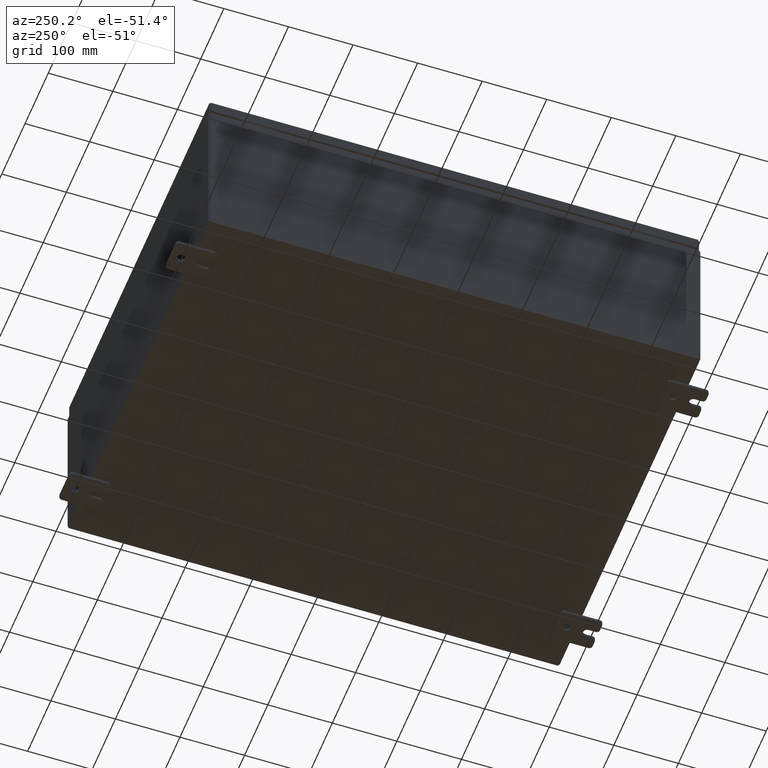
[diagram: clean part render]
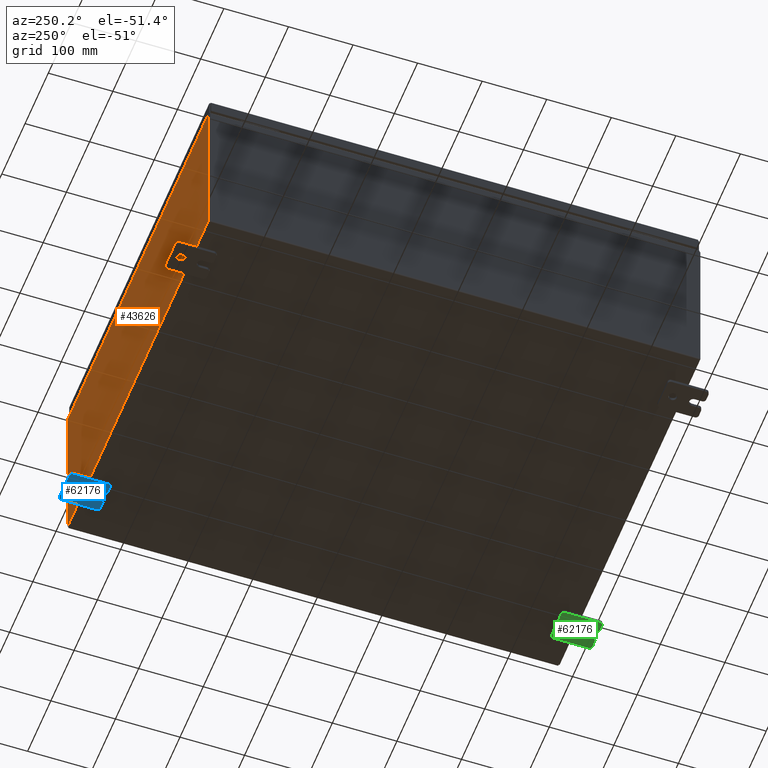
[diagram: same view with three faces highlighted in distinct colors, each labeled with its STEP entity id]
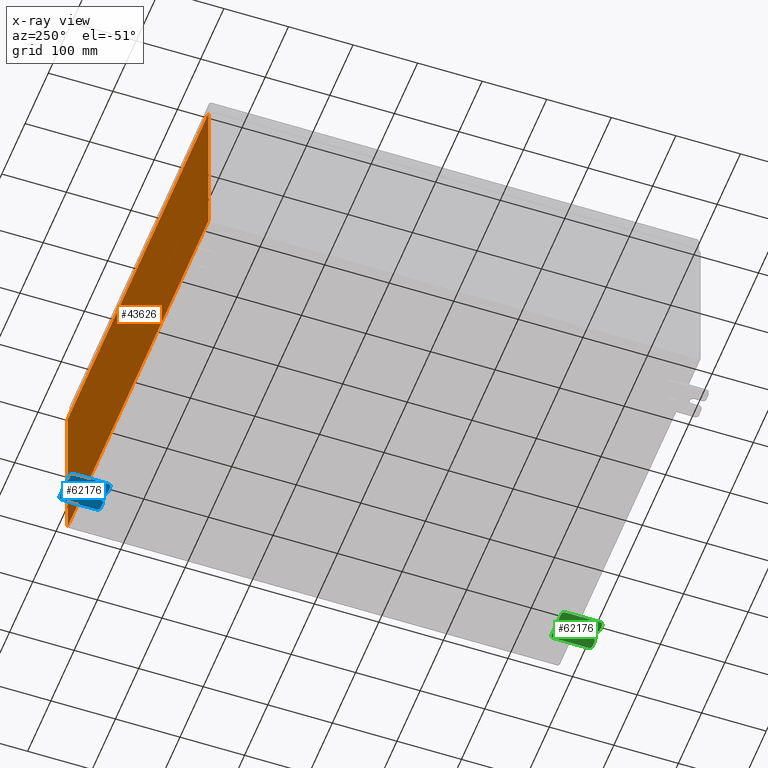
[diagram: x-ray of the same camera — body ghosted, the three highlighted faces saturated]
A machine part, auxiliary view with three faces highlighted in distinct colors.
The next image is the same camera in x-ray (body ghosted, the three faces saturated) — at least one of them is partly hidden behind the body in this view.
Their STEP definitions:

[orange] entity #43626 — the highlighted planar face has unit normal (0, -1, 0).
#475 = VECTOR ( 'NONE', #16385, 39.37007874015748100 ) ;
#1936 = DIRECTION ( 'NONE',  ( -0.0000000000000000000, -0.0000000000000000000, 1.000000000000000000 ) ) ;
#2320 = CARTESIAN_POINT ( 'NONE',  ( 10.92454999999978900, -0.0000000000000000000, -4.741880436811796300E-013 ) ) ;
#2469 = ORIENTED_EDGE ( 'NONE', *, *, #43385, .F. ) ;
#5172 = CARTESIAN_POINT ( 'NONE',  ( -10.88720000000000000, -7.171100983368691200E-016, 4.912300000000000100 ) ) ;
#6236 = CARTESIAN_POINT ( 'NONE',  ( -11.92530000000000000, 0.0000000000000000000, 4.925300000000000000 ) ) ;
#6252 = CIRCLE ( 'NONE', #32690, 0.01867499999999949400 ) ;
#6506 = EDGE_CURVE ( 'NONE', #56201, #15794, #50522, .T. ) ;
#7429 = DIRECTION ( 'NONE',  ( -0.0000000000000000000, 1.000000000000000000, -0.0000000000000000000 ) ) ;
#7491 = EDGE_CURVE ( 'NONE', #17579, #52685, #22674, .T. ) ;
#8458 = DIRECTION ( 'NONE',  ( 0.0000000000000000000, -0.0000000000000000000, -1.000000000000000000 ) ) ;
#9488 = VECTOR ( 'NONE', #29117, 39.37007874015748100 ) ;
#9551 = VECTOR ( 'NONE', #58863, 39.37007874015748100 ) ;
#11231 = DIRECTION ( 'NONE',  ( 1.000000000000000000, 0.0000000000000000000, 0.0000000000000000000 ) ) ;
#11532 = VECTOR ( 'NONE', #39005, 39.37007874015748100 ) ;
#12406 = CARTESIAN_POINT ( 'NONE',  ( -10.90587500000000000, 0.0000000000000000000, 4.874950000000000100 ) ) ;
#12453 = VECTOR ( 'NONE', #1936, 39.37007874015748100 ) ;
#13643 = VERTEX_POINT ( 'NONE', #28390 ) ;
#15794 = VERTEX_POINT ( 'NONE', #20046 ) ;
#16385 = DIRECTION ( 'NONE',  ( 0.0000000000000000000, 0.0000000000000000000, 1.000000000000000000 ) ) ;
#16985 = CARTESIAN_POINT ( 'NONE',  ( -11.92530000000000000, 0.0000000000000000000, 4.925300000000000000 ) ) ;
#17055 = LINE ( 'NONE', #47132, #54873 ) ;
#17066 = ORIENTED_EDGE ( 'NONE', *, *, #23777, .T. ) ;
#17212 = CARTESIAN_POINT ( 'NONE',  ( 10.92455000000000000, 0.0000000000000000000, 4.925300000000000000 ) ) ;
#17410 = DIRECTION ( 'NONE',  ( 0.0000000000000000000, 0.0000000000000000000, -1.000000000000000000 ) ) ;
#17579 = VERTEX_POINT ( 'NONE', #30150 ) ;
#19076 = CIRCLE ( 'NONE', #41275, 0.01867499999999949400 ) ;
#19156 = ORIENTED_EDGE ( 'NONE', *, *, #6506, .T. ) ;
#20046 = CARTESIAN_POINT ( 'NONE',  ( -10.92454999999999800, 0.0000000000000000000, 4.925300000000000000 ) ) ;
#20300 = EDGE_CURVE ( 'NONE', #62571, #32324, #27348, .T. ) ;
#21691 = VECTOR ( 'NONE', #11231, 39.37007874015748100 ) ;
#22494 = EDGE_CURVE ( 'NONE', #23969, #35877, #6252, .T. ) ;
#22511 = VERTEX_POINT ( 'NONE', #17212 ) ;
#22674 = LINE ( 'NONE', #52128, #9488 ) ;
#22838 = CARTESIAN_POINT ( 'NONE',  ( -10.88720000000000000, -0.0000000000000000000, 4.874950000000000100 ) ) ;
#23237 = EDGE_CURVE ( 'NONE', #35035, #56201, #51877, .T. ) ;
#23641 = AXIS2_PLACEMENT_3D ( 'NONE', #32056, #38057, #8458 ) ;
#23777 = EDGE_CURVE ( 'NONE', #22511, #17579, #61151, .T. ) ;
#23969 = VERTEX_POINT ( 'NONE', #51864 ) ;
#24157 = CARTESIAN_POINT ( 'NONE',  ( -11.92530000000000000, 0.0000000000000000000, -4.925300000000000000 ) ) ;
#24701 = LINE ( 'NONE', #58688, #11532 ) ;
#26080 = CARTESIAN_POINT ( 'NONE',  ( 10.88720000000000200, 0.0000000000000000000, 0.0000000000000000000 ) ) ;
#27022 = EDGE_CURVE ( 'NONE', #35877, #53369, #28440, .T. ) ;
#27070 = DIRECTION ( 'NONE',  ( -4.340572780400004900E-014, 0.0000000000000000000, -1.000000000000000000 ) ) ;
#27237 = ORIENTED_EDGE ( 'NONE', *, *, #22494, .F. ) ;
#27348 = LINE ( 'NONE', #46333, #53585 ) ;
#28390 = CARTESIAN_POINT ( 'NONE',  ( -10.92454999999999800, 0.0000000000000000000, 4.874950000000000100 ) ) ;
#28440 = LINE ( 'NONE', #26080, #475 ) ;
#28891 = CARTESIAN_POINT ( 'NONE',  ( -11.92530000000000000, 0.0000000000000000000, 4.925300000000000000 ) ) ;
#29117 = DIRECTION ( 'NONE',  ( 0.0000000000000000000, 0.0000000000000000000, -1.000000000000000000 ) ) ;
#30150 = CARTESIAN_POINT ( 'NONE',  ( 11.92530000000000000, 0.0000000000000000000, 4.925300000000000000 ) ) ;
#31290 = CARTESIAN_POINT ( 'NONE',  ( 11.92530000000000000, 0.0000000000000000000, -4.925300000000000000 ) ) ;
#32056 = CARTESIAN_POINT ( 'NONE',  ( 0.0000000000000000000, 0.0000000000000000000, 0.0000000000000000000 ) ) ;
#32324 = VERTEX_POINT ( 'NONE', #22838 ) ;
#32690 = AXIS2_PLACEMENT_3D ( 'NONE', #37051, #7429, #42010 ) ;
#35035 = VERTEX_POINT ( 'NONE', #24157 ) ;
#35877 = VERTEX_POINT ( 'NONE', #64237 ) ;
#36603 = ORIENTED_EDGE ( 'NONE', *, *, #23237, .T. ) ;
#36949 = EDGE_CURVE ( 'NONE', #22511, #23969, #46406, .T. ) ;
#37051 = CARTESIAN_POINT ( 'NONE',  ( 10.90587500000000200, 0.0000000000000000000, 4.874950000000000100 ) ) ;
#37069 = EDGE_CURVE ( 'NONE', #62571, #53369, #17055, .T. ) ;
#37178 = EDGE_LOOP ( 'NONE', ( #2469, #50299, #45892, #47864, #47634, #27237, #60341, #17066, #57607, #57658, #36603, #19156 ) ) ;
#37702 = EDGE_CURVE ( 'NONE', #52685, #35035, #24701, .T. ) ;
#38057 = DIRECTION ( 'NONE',  ( 0.0000000000000000000, -1.000000000000000000, 0.0000000000000000000 ) ) ;
#39005 = DIRECTION ( 'NONE',  ( -1.000000000000000000, -0.0000000000000000000, -0.0000000000000000000 ) ) ;
#41275 = AXIS2_PLACEMENT_3D ( 'NONE', #12406, #46980, #17410 ) ;
#41371 = EDGE_CURVE ( 'NONE', #32324, #13643, #19076, .T. ) ;
#42010 = DIRECTION ( 'NONE',  ( 0.0000000000000000000, 0.0000000000000000000, -1.000000000000000000 ) ) ;
#43385 = EDGE_CURVE ( 'NONE', #13643, #15794, #53046, .T. ) ;
#43626 = ADVANCED_FACE ( 'NONE', ( #58469 ), #57758, .F. ) ;
#45178 = CARTESIAN_POINT ( 'NONE',  ( 10.88720000000000200, 0.0000000000000000000, 4.912300000000000100 ) ) ;
#45892 = ORIENTED_EDGE ( 'NONE', *, *, #20300, .F. ) ;
#46333 = CARTESIAN_POINT ( 'NONE',  ( -10.88720000000000000, -0.0000000000000000000, 0.0000000000000000000 ) ) ;
#46406 = LINE ( 'NONE', #2320, #59571 ) ;
#46977 = CARTESIAN_POINT ( 'NONE',  ( -11.92530000000000000, 0.0000000000000000000, 4.925300000000000000 ) ) ;
#46980 = DIRECTION ( 'NONE',  ( -0.0000000000000000000, 1.000000000000000000, -0.0000000000000000000 ) ) ;
#47132 = CARTESIAN_POINT ( 'NONE',  ( -10.88720000000000200, -7.171100983368691200E-016, 4.912300000000000100 ) ) ;
#47634 = ORIENTED_EDGE ( 'NONE', *, *, #27022, .F. ) ;
#47864 = ORIENTED_EDGE ( 'NONE', *, *, #37069, .T. ) ;
#50299 = ORIENTED_EDGE ( 'NONE', *, *, #41371, .F. ) ;
#50522 = LINE ( 'NONE', #28891, #9551 ) ;
#51493 = VECTOR ( 'NONE', #55245, 39.37007874015748100 ) ;
#51503 = DIRECTION ( 'NONE',  ( 0.0000000000000000000, 0.0000000000000000000, -1.000000000000000000 ) ) ;
#51864 = CARTESIAN_POINT ( 'NONE',  ( 10.92455000000000000, 0.0000000000000000000, 4.874950000000000100 ) ) ;
#51877 = LINE ( 'NONE', #16985, #12453 ) ;
#52128 = CARTESIAN_POINT ( 'NONE',  ( 11.92530000000000000, 0.0000000000000000000, 4.925300000000000000 ) ) ;
#52685 = VERTEX_POINT ( 'NONE', #31290 ) ;
#53046 = LINE ( 'NONE', #60236, #51493 ) ;
#53369 = VERTEX_POINT ( 'NONE', #45178 ) ;
#53585 = VECTOR ( 'NONE', #51503, 39.37007874015748100 ) ;
#54873 = VECTOR ( 'NONE', #62298, 39.37007874015748100 ) ;
#55245 = DIRECTION ( 'NONE',  ( 0.0000000000000000000, 0.0000000000000000000, 1.000000000000000000 ) ) ;
#56201 = VERTEX_POINT ( 'NONE', #46977 ) ;
#57607 = ORIENTED_EDGE ( 'NONE', *, *, #7491, .T. ) ;
#57658 = ORIENTED_EDGE ( 'NONE', *, *, #37702, .T. ) ;
#57758 = PLANE ( 'NONE',  #23641 ) ;
#58469 = FACE_OUTER_BOUND ( 'NONE', #37178, .T. ) ;
#58688 = CARTESIAN_POINT ( 'NONE',  ( -11.92530000000000000, 0.0000000000000000000, -4.925300000000000000 ) ) ;
#58863 = DIRECTION ( 'NONE',  ( 1.000000000000000000, 0.0000000000000000000, 0.0000000000000000000 ) ) ;
#59571 = VECTOR ( 'NONE', #27070, 39.37007874015748100 ) ;
#60236 = CARTESIAN_POINT ( 'NONE',  ( -10.92454999999999800, -0.0000000000000000000, 0.0000000000000000000 ) ) ;
#60341 = ORIENTED_EDGE ( 'NONE', *, *, #36949, .F. ) ;
#61151 = LINE ( 'NONE', #6236, #21691 ) ;
#62298 = DIRECTION ( 'NONE',  ( 1.000000000000000000, 0.0000000000000000000, 0.0000000000000000000 ) ) ;
#62571 = VERTEX_POINT ( 'NONE', #5172 ) ;
#64237 = CARTESIAN_POINT ( 'NONE',  ( 10.88720000000000200, 0.0000000000000000000, 4.874950000000000100 ) ) ;

[blue] entity #62176 — the highlighted planar face has unit normal (0, 0, 1).
#374 = ORIENTED_EDGE ( 'NONE', *, *, #29772, .T. ) ;
#427 = CIRCLE ( 'NONE', #10709, 0.2499999999999999200 ) ;
#1427 = AXIS2_PLACEMENT_3D ( 'NONE', #54958, #4538, #31204 ) ;
#1960 = CIRCLE ( 'NONE', #24511, 0.1900000000000011100 ) ;
#2434 = ORIENTED_EDGE ( 'NONE', *, *, #48936, .F. ) ;
#2620 = ORIENTED_EDGE ( 'NONE', *, *, #35389, .F. ) ;
#2788 = EDGE_CURVE ( 'NONE', #44890, #25598, #42414, .T. ) ;
#3155 = CARTESIAN_POINT ( 'NONE',  ( -0.1879999999999997800, -1.250000000000005600, -1.000000000000006200 ) ) ;
#4411 = EDGE_CURVE ( 'NONE', #62870, #14577, #35068, .T. ) ;
#4538 = DIRECTION ( 'NONE',  ( -1.000000000000000000, -0.0000000000000000000, 0.0000000000000000000 ) ) ;
#4834 = ORIENTED_EDGE ( 'NONE', *, *, #2788, .F. ) ;
#5168 = CARTESIAN_POINT ( 'NONE',  ( -0.1880000000000004700, -1.060000000000003400, -0.2499999999999994400 ) ) ;
#5798 = EDGE_CURVE ( 'NONE', #22748, #57081, #26620, .T. ) ;
#5935 = VECTOR ( 'NONE', #52695, 39.37007874015748100 ) ;
#6024 = DIRECTION ( 'NONE',  ( -1.000000000000000000, -0.0000000000000000000, 0.0000000000000000000 ) ) ;
#6175 = ORIENTED_EDGE ( 'NONE', *, *, #26334, .T. ) ;
#6201 = CARTESIAN_POINT ( 'NONE',  ( -0.1880000000000010000, 0.6249999999999992200, -7.703811342100550500E-020 ) ) ;
#6605 = LINE ( 'NONE', #45254, #19814 ) ;
#7321 = AXIS2_PLACEMENT_3D ( 'NONE', #26987, #21803, #36910 ) ;
#7538 = LINE ( 'NONE', #47717, #5935 ) ;
#8000 = CARTESIAN_POINT ( 'NONE',  ( -0.1879999999999997800, -1.250000000000004700, -0.4400000000000002200 ) ) ;
#9768 = DIRECTION ( 'NONE',  ( -1.000000000000000000, 6.523827964459549700E-016, 5.163192708025532000E-017 ) ) ;
#10706 = LINE ( 'NONE', #52826, #63356 ) ;
#10709 = AXIS2_PLACEMENT_3D ( 'NONE', #6201, #40810, #11202 ) ;
#10807 = CARTESIAN_POINT ( 'NONE',  ( -0.1880000000000001900, -0.6249999999999992200, 0.2500000000000005000 ) ) ;
#10841 = DIRECTION ( 'NONE',  ( 0.0000000000000000000, -1.639108796198553600E-015, -1.000000000000000000 ) ) ;
#11202 = DIRECTION ( 'NONE',  ( 0.0000000000000000000, 0.0000000000000000000, -1.000000000000000000 ) ) ;
#11275 = CARTESIAN_POINT ( 'NONE',  ( -0.1879999999999997800, 1.249999999999997600, 0.9999999999999951200 ) ) ;
#11513 = CARTESIAN_POINT ( 'NONE',  ( -0.1879999999999997800, -1.060000000000002100, 0.4400000000000016700 ) ) ;
#12080 = EDGE_CURVE ( 'NONE', #57412, #23712, #10706, .T. ) ;
#12317 = DIRECTION ( 'NONE',  ( 1.000000000000000000, -0.0000000000000000000, -5.163192708025532000E-017 ) ) ;
#12320 = CARTESIAN_POINT ( 'NONE',  ( -0.1879999999999997800, -1.060000000000001600, 0.8099999999999978300 ) ) ;
#12898 = ORIENTED_EDGE ( 'NONE', *, *, #57688, .F. ) ;
#12905 = CARTESIAN_POINT ( 'NONE',  ( -0.1879999999999997800, 1.059999999999993400, -1.000000000000010000 ) ) ;
#13832 = VECTOR ( 'NONE', #37798, 39.37007874015748100 ) ;
#14577 = VERTEX_POINT ( 'NONE', #5168 ) ;
#14708 = EDGE_CURVE ( 'NONE', #61397, #14577, #1960, .T. ) ;
#15571 = EDGE_CURVE ( 'NONE', #24017, #21118, #6605, .T. ) ;
#15707 = CARTESIAN_POINT ( 'NONE',  ( -0.1880000000000001900, -0.6249999999999992200, -0.2499999999999993900 ) ) ;
#16071 = ORIENTED_EDGE ( 'NONE', *, *, #14708, .T. ) ;
#16433 = ORIENTED_EDGE ( 'NONE', *, *, #15571, .F. ) ;
#16549 = DIRECTION ( 'NONE',  ( 0.0000000000000000000, 0.0000000000000000000, -1.000000000000000000 ) ) ;
#16580 = CARTESIAN_POINT ( 'NONE',  ( -0.1879999999999997800, 1.059999999999996500, 0.9999999999999953400 ) ) ;
#17131 = CARTESIAN_POINT ( 'NONE',  ( -0.1880000000000001900, -0.6249999999999992200, -0.2499999999999998600 ) ) ;
#17330 = DIRECTION ( 'NONE',  ( 0.0000000000000000000, 7.189073667537492800E-016, -1.000000000000000000 ) ) ;
#17558 = CARTESIAN_POINT ( 'NONE',  ( -0.1879999999999997800, 1.249999999999994700, -0.8100000000000092700 ) ) ;
#17788 = AXIS2_PLACEMENT_3D ( 'NONE', #22072, #56621, #27035 ) ;
#19814 = VECTOR ( 'NONE', #30780, 39.37007874015748100 ) ;
#20157 = ORIENTED_EDGE ( 'NONE', *, *, #12080, .F. ) ;
#21118 = VERTEX_POINT ( 'NONE', #36392 ) ;
#21306 = ORIENTED_EDGE ( 'NONE', *, *, #56827, .T. ) ;
#21803 = DIRECTION ( 'NONE',  ( 1.000000000000000000, 0.0000000000000000000, -0.0000000000000000000 ) ) ;
#21969 = VECTOR ( 'NONE', #35895, 39.37007874015748100 ) ;
#22072 = CARTESIAN_POINT ( 'NONE',  ( -0.1879999999999997800, 1.059999999999996300, 0.8099999999999938400 ) ) ;
#22155 = CARTESIAN_POINT ( 'NONE',  ( -0.1880000000000010000, 0.6249999999999992200, 0.2499999999999999200 ) ) ;
#22276 = CARTESIAN_POINT ( 'NONE',  ( -0.1879999999999997800, -1.060000000000004500, -1.000000000000006400 ) ) ;
#22748 = VERTEX_POINT ( 'NONE', #22276 ) ;
#22977 = ORIENTED_EDGE ( 'NONE', *, *, #4411, .F. ) ;
#23252 = DIRECTION ( 'NONE',  ( 6.556435184794182400E-016, 1.000000000000000000, 0.0000000000000000000 ) ) ;
#23312 = VERTEX_POINT ( 'NONE', #22155 ) ;
#23712 = VERTEX_POINT ( 'NONE', #10807 ) ;
#24017 = VERTEX_POINT ( 'NONE', #17558 ) ;
#24511 = AXIS2_PLACEMENT_3D ( 'NONE', #35673, #6024, #40655 ) ;
#25598 = VERTEX_POINT ( 'NONE', #32067 ) ;
#26334 = EDGE_CURVE ( 'NONE', #31571, #23312, #45483, .T. ) ;
#26620 = CIRCLE ( 'NONE', #1427, 0.1900000000000011100 ) ;
#26987 = CARTESIAN_POINT ( 'NONE',  ( -0.1879999999999997800, 0.0000000000000000000, 0.0000000000000000000 ) ) ;
#27035 = DIRECTION ( 'NONE',  ( 0.0000000000000000000, 0.0000000000000000000, -1.000000000000000000 ) ) ;
#27170 = CIRCLE ( 'NONE', #57730, 0.1900000000000011100 ) ;
#28506 = EDGE_CURVE ( 'NONE', #59071, #21118, #50758, .T. ) ;
#28833 = ORIENTED_EDGE ( 'NONE', *, *, #60505, .T. ) ;
#29605 = DIRECTION ( 'NONE',  ( -1.000000000000000000, -0.0000000000000000000, 0.0000000000000000000 ) ) ;
#29772 = EDGE_CURVE ( 'NONE', #23312, #31571, #427, .T. ) ;
#30780 = DIRECTION ( 'NONE',  ( 0.0000000000000000000, 1.639108796198553600E-015, 1.000000000000000000 ) ) ;
#30963 = FACE_OUTER_BOUND ( 'NONE', #46139, .T. ) ;
#31204 = DIRECTION ( 'NONE',  ( 0.0000000000000000000, 0.0000000000000000000, -1.000000000000000000 ) ) ;
#31571 = VERTEX_POINT ( 'NONE', #52903 ) ;
#31961 = PLANE ( 'NONE',  #7321 ) ;
#32067 = CARTESIAN_POINT ( 'NONE',  ( -0.1879999999999997800, -1.250000000000003100, 0.4400000000000020000 ) ) ;
#35068 = LINE ( 'NONE', #15707, #21969 ) ;
#35389 = EDGE_CURVE ( 'NONE', #59071, #60490, #61993, .T. ) ;
#35578 = CIRCLE ( 'NONE', #63222, 0.1900000000000011400 ) ;
#35673 = CARTESIAN_POINT ( 'NONE',  ( -0.1879999999999997800, -1.060000000000003400, -0.4400000000000005000 ) ) ;
#35895 = DIRECTION ( 'NONE',  ( -6.556435184794182400E-016, -1.000000000000000000, -1.639108796198545600E-016 ) ) ;
#36392 = CARTESIAN_POINT ( 'NONE',  ( -0.1879999999999997800, 1.249999999999997300, 0.8099999999999935000 ) ) ;
#36910 = DIRECTION ( 'NONE',  ( -0.0000000000000000000, 0.0000000000000000000, -1.000000000000000000 ) ) ;
#37226 = VECTOR ( 'NONE', #40890, 39.37007874015748100 ) ;
#37798 = DIRECTION ( 'NONE',  ( 0.0000000000000000000, 1.000000000000000000, -1.639108796198558100E-015 ) ) ;
#38968 = AXIS2_PLACEMENT_3D ( 'NONE', #12320, #46894, #17330 ) ;
#39394 = CARTESIAN_POINT ( 'NONE',  ( -0.1880000000000001900, -0.6249999999999992200, 6.829619984160658000E-017 ) ) ;
#40655 = DIRECTION ( 'NONE',  ( 0.0000000000000000000, 0.0000000000000000000, -1.000000000000000000 ) ) ;
#40810 = DIRECTION ( 'NONE',  ( 1.000000000000000000, -0.0000000000000000000, -5.163192708025532000E-017 ) ) ;
#40890 = DIRECTION ( 'NONE',  ( 0.0000000000000000000, -1.000000000000000000, 1.639108796198558100E-015 ) ) ;
#41669 = ORIENTED_EDGE ( 'NONE', *, *, #47628, .F. ) ;
#41905 = CARTESIAN_POINT ( 'NONE',  ( -0.1880000000000010000, 0.6249999999999992200, -7.703811342100550500E-020 ) ) ;
#42414 = LINE ( 'NONE', #45426, #53988 ) ;
#42560 = FACE_BOUND ( 'NONE', #53303, .T. ) ;
#44345 = DIRECTION ( 'NONE',  ( -6.829619984160660000E-016, -1.000000000000000000, 0.0000000000000000000 ) ) ;
#44890 = VERTEX_POINT ( 'NONE', #62106 ) ;
#45254 = CARTESIAN_POINT ( 'NONE',  ( -0.1879999999999997800, 1.249999999999994200, -1.000000000000010400 ) ) ;
#45426 = CARTESIAN_POINT ( 'NONE',  ( -0.1879999999999997800, -1.250000000000002200, 0.9999999999999992200 ) ) ;
#45483 = CIRCLE ( 'NONE', #56178, 0.2499999999999999200 ) ;
#45685 = CARTESIAN_POINT ( 'NONE',  ( -0.1879999999999997800, -1.060000000000001200, 0.9999999999999988900 ) ) ;
#45724 = ORIENTED_EDGE ( 'NONE', *, *, #28506, .T. ) ;
#46114 = DIRECTION ( 'NONE',  ( -1.000000000000000000, -0.0000000000000000000, 0.0000000000000000000 ) ) ;
#46139 = EDGE_LOOP ( 'NONE', ( #4834, #50636, #2620, #45724, #16433, #21306, #41669, #58567, #2434, #16071, #22977, #12898, #20157, #28833 ) ) ;
#46890 = DIRECTION ( 'NONE',  ( 0.0000000000000000000, 0.0000000000000000000, -1.000000000000000000 ) ) ;
#46894 = DIRECTION ( 'NONE',  ( -1.000000000000000000, -0.0000000000000000000, 0.0000000000000000000 ) ) ;
#47628 = EDGE_CURVE ( 'NONE', #22748, #54864, #51685, .T. ) ;
#47717 = CARTESIAN_POINT ( 'NONE',  ( -0.1879999999999997800, -1.250000000000002200, 0.9999999999999992200 ) ) ;
#48911 = CIRCLE ( 'NONE', #61892, 0.2499999999999999200 ) ;
#48936 = EDGE_CURVE ( 'NONE', #61397, #57081, #7538, .T. ) ;
#50636 = ORIENTED_EDGE ( 'NONE', *, *, #53600, .T. ) ;
#50668 = CARTESIAN_POINT ( 'NONE',  ( -0.1879999999999997800, -1.250000000000005300, -0.8100000000000047200 ) ) ;
#50758 = CIRCLE ( 'NONE', #17788, 0.1900000000000011100 ) ;
#51685 = LINE ( 'NONE', #3155, #13832 ) ;
#52607 = CARTESIAN_POINT ( 'NONE',  ( -0.1880000000000004700, -1.060000000000002100, 0.2500000000000005000 ) ) ;
#52695 = DIRECTION ( 'NONE',  ( 0.0000000000000000000, -1.639108796198553600E-015, -1.000000000000000000 ) ) ;
#52826 = CARTESIAN_POINT ( 'NONE',  ( -0.1880000000000005800, -1.250000000000003800, 0.2500000000000005000 ) ) ;
#52903 = CARTESIAN_POINT ( 'NONE',  ( -0.1880000000000010000, 0.6249999999999992200, -0.2499999999999999200 ) ) ;
#53303 = EDGE_LOOP ( 'NONE', ( #6175, #374 ) ) ;
#53600 = EDGE_CURVE ( 'NONE', #44890, #60490, #61417, .T. ) ;
#53988 = VECTOR ( 'NONE', #10841, 39.37007874015748100 ) ;
#54864 = VERTEX_POINT ( 'NONE', #12905 ) ;
#54958 = CARTESIAN_POINT ( 'NONE',  ( -0.1879999999999997800, -1.060000000000004100, -0.8100000000000050500 ) ) ;
#56178 = AXIS2_PLACEMENT_3D ( 'NONE', #41905, #12317, #46890 ) ;
#56621 = DIRECTION ( 'NONE',  ( -1.000000000000000000, -0.0000000000000000000, 0.0000000000000000000 ) ) ;
#56827 = EDGE_CURVE ( 'NONE', #24017, #54864, #27170, .T. ) ;
#57081 = VERTEX_POINT ( 'NONE', #50668 ) ;
#57412 = VERTEX_POINT ( 'NONE', #52607 ) ;
#57688 = EDGE_CURVE ( 'NONE', #23712, #62870, #48911, .T. ) ;
#57730 = AXIS2_PLACEMENT_3D ( 'NONE', #59243, #29605, #64222 ) ;
#58567 = ORIENTED_EDGE ( 'NONE', *, *, #5798, .T. ) ;
#59071 = VERTEX_POINT ( 'NONE', #16580 ) ;
#59243 = CARTESIAN_POINT ( 'NONE',  ( -0.1879999999999997800, 1.059999999999993600, -0.8100000000000089400 ) ) ;
#60490 = VERTEX_POINT ( 'NONE', #45685 ) ;
#60505 = EDGE_CURVE ( 'NONE', #57412, #25598, #35578, .T. ) ;
#61397 = VERTEX_POINT ( 'NONE', #8000 ) ;
#61417 = CIRCLE ( 'NONE', #38968, 0.1900000000000011100 ) ;
#61892 = AXIS2_PLACEMENT_3D ( 'NONE', #39394, #9768, #44345 ) ;
#61993 = LINE ( 'NONE', #11275, #37226 ) ;
#62106 = CARTESIAN_POINT ( 'NONE',  ( -0.1879999999999997800, -1.250000000000002400, 0.8099999999999980500 ) ) ;
#62176 = ADVANCED_FACE ( 'NONE', ( #42560, #30963 ), #31961, .F. ) ;
#62870 = VERTEX_POINT ( 'NONE', #17131 ) ;
#63222 = AXIS2_PLACEMENT_3D ( 'NONE', #11513, #46114, #16549 ) ;
#63356 = VECTOR ( 'NONE', #23252, 39.37007874015748100 ) ;
#64222 = DIRECTION ( 'NONE',  ( 0.0000000000000000000, 0.0000000000000000000, -1.000000000000000000 ) ) ;

[green] entity #62176 — the highlighted planar face has unit normal (0, 0, 1).
#374 = ORIENTED_EDGE ( 'NONE', *, *, #29772, .T. ) ;
#427 = CIRCLE ( 'NONE', #10709, 0.2499999999999999200 ) ;
#1427 = AXIS2_PLACEMENT_3D ( 'NONE', #54958, #4538, #31204 ) ;
#1960 = CIRCLE ( 'NONE', #24511, 0.1900000000000011100 ) ;
#2434 = ORIENTED_EDGE ( 'NONE', *, *, #48936, .F. ) ;
#2620 = ORIENTED_EDGE ( 'NONE', *, *, #35389, .F. ) ;
#2788 = EDGE_CURVE ( 'NONE', #44890, #25598, #42414, .T. ) ;
#3155 = CARTESIAN_POINT ( 'NONE',  ( -0.1879999999999997800, -1.250000000000005600, -1.000000000000006200 ) ) ;
#4411 = EDGE_CURVE ( 'NONE', #62870, #14577, #35068, .T. ) ;
#4538 = DIRECTION ( 'NONE',  ( -1.000000000000000000, -0.0000000000000000000, 0.0000000000000000000 ) ) ;
#4834 = ORIENTED_EDGE ( 'NONE', *, *, #2788, .F. ) ;
#5168 = CARTESIAN_POINT ( 'NONE',  ( -0.1880000000000004700, -1.060000000000003400, -0.2499999999999994400 ) ) ;
#5798 = EDGE_CURVE ( 'NONE', #22748, #57081, #26620, .T. ) ;
#5935 = VECTOR ( 'NONE', #52695, 39.37007874015748100 ) ;
#6024 = DIRECTION ( 'NONE',  ( -1.000000000000000000, -0.0000000000000000000, 0.0000000000000000000 ) ) ;
#6175 = ORIENTED_EDGE ( 'NONE', *, *, #26334, .T. ) ;
#6201 = CARTESIAN_POINT ( 'NONE',  ( -0.1880000000000010000, 0.6249999999999992200, -7.703811342100550500E-020 ) ) ;
#6605 = LINE ( 'NONE', #45254, #19814 ) ;
#7321 = AXIS2_PLACEMENT_3D ( 'NONE', #26987, #21803, #36910 ) ;
#7538 = LINE ( 'NONE', #47717, #5935 ) ;
#8000 = CARTESIAN_POINT ( 'NONE',  ( -0.1879999999999997800, -1.250000000000004700, -0.4400000000000002200 ) ) ;
#9768 = DIRECTION ( 'NONE',  ( -1.000000000000000000, 6.523827964459549700E-016, 5.163192708025532000E-017 ) ) ;
#10706 = LINE ( 'NONE', #52826, #63356 ) ;
#10709 = AXIS2_PLACEMENT_3D ( 'NONE', #6201, #40810, #11202 ) ;
#10807 = CARTESIAN_POINT ( 'NONE',  ( -0.1880000000000001900, -0.6249999999999992200, 0.2500000000000005000 ) ) ;
#10841 = DIRECTION ( 'NONE',  ( 0.0000000000000000000, -1.639108796198553600E-015, -1.000000000000000000 ) ) ;
#11202 = DIRECTION ( 'NONE',  ( 0.0000000000000000000, 0.0000000000000000000, -1.000000000000000000 ) ) ;
#11275 = CARTESIAN_POINT ( 'NONE',  ( -0.1879999999999997800, 1.249999999999997600, 0.9999999999999951200 ) ) ;
#11513 = CARTESIAN_POINT ( 'NONE',  ( -0.1879999999999997800, -1.060000000000002100, 0.4400000000000016700 ) ) ;
#12080 = EDGE_CURVE ( 'NONE', #57412, #23712, #10706, .T. ) ;
#12317 = DIRECTION ( 'NONE',  ( 1.000000000000000000, -0.0000000000000000000, -5.163192708025532000E-017 ) ) ;
#12320 = CARTESIAN_POINT ( 'NONE',  ( -0.1879999999999997800, -1.060000000000001600, 0.8099999999999978300 ) ) ;
#12898 = ORIENTED_EDGE ( 'NONE', *, *, #57688, .F. ) ;
#12905 = CARTESIAN_POINT ( 'NONE',  ( -0.1879999999999997800, 1.059999999999993400, -1.000000000000010000 ) ) ;
#13832 = VECTOR ( 'NONE', #37798, 39.37007874015748100 ) ;
#14577 = VERTEX_POINT ( 'NONE', #5168 ) ;
#14708 = EDGE_CURVE ( 'NONE', #61397, #14577, #1960, .T. ) ;
#15571 = EDGE_CURVE ( 'NONE', #24017, #21118, #6605, .T. ) ;
#15707 = CARTESIAN_POINT ( 'NONE',  ( -0.1880000000000001900, -0.6249999999999992200, -0.2499999999999993900 ) ) ;
#16071 = ORIENTED_EDGE ( 'NONE', *, *, #14708, .T. ) ;
#16433 = ORIENTED_EDGE ( 'NONE', *, *, #15571, .F. ) ;
#16549 = DIRECTION ( 'NONE',  ( 0.0000000000000000000, 0.0000000000000000000, -1.000000000000000000 ) ) ;
#16580 = CARTESIAN_POINT ( 'NONE',  ( -0.1879999999999997800, 1.059999999999996500, 0.9999999999999953400 ) ) ;
#17131 = CARTESIAN_POINT ( 'NONE',  ( -0.1880000000000001900, -0.6249999999999992200, -0.2499999999999998600 ) ) ;
#17330 = DIRECTION ( 'NONE',  ( 0.0000000000000000000, 7.189073667537492800E-016, -1.000000000000000000 ) ) ;
#17558 = CARTESIAN_POINT ( 'NONE',  ( -0.1879999999999997800, 1.249999999999994700, -0.8100000000000092700 ) ) ;
#17788 = AXIS2_PLACEMENT_3D ( 'NONE', #22072, #56621, #27035 ) ;
#19814 = VECTOR ( 'NONE', #30780, 39.37007874015748100 ) ;
#20157 = ORIENTED_EDGE ( 'NONE', *, *, #12080, .F. ) ;
#21118 = VERTEX_POINT ( 'NONE', #36392 ) ;
#21306 = ORIENTED_EDGE ( 'NONE', *, *, #56827, .T. ) ;
#21803 = DIRECTION ( 'NONE',  ( 1.000000000000000000, 0.0000000000000000000, -0.0000000000000000000 ) ) ;
#21969 = VECTOR ( 'NONE', #35895, 39.37007874015748100 ) ;
#22072 = CARTESIAN_POINT ( 'NONE',  ( -0.1879999999999997800, 1.059999999999996300, 0.8099999999999938400 ) ) ;
#22155 = CARTESIAN_POINT ( 'NONE',  ( -0.1880000000000010000, 0.6249999999999992200, 0.2499999999999999200 ) ) ;
#22276 = CARTESIAN_POINT ( 'NONE',  ( -0.1879999999999997800, -1.060000000000004500, -1.000000000000006400 ) ) ;
#22748 = VERTEX_POINT ( 'NONE', #22276 ) ;
#22977 = ORIENTED_EDGE ( 'NONE', *, *, #4411, .F. ) ;
#23252 = DIRECTION ( 'NONE',  ( 6.556435184794182400E-016, 1.000000000000000000, 0.0000000000000000000 ) ) ;
#23312 = VERTEX_POINT ( 'NONE', #22155 ) ;
#23712 = VERTEX_POINT ( 'NONE', #10807 ) ;
#24017 = VERTEX_POINT ( 'NONE', #17558 ) ;
#24511 = AXIS2_PLACEMENT_3D ( 'NONE', #35673, #6024, #40655 ) ;
#25598 = VERTEX_POINT ( 'NONE', #32067 ) ;
#26334 = EDGE_CURVE ( 'NONE', #31571, #23312, #45483, .T. ) ;
#26620 = CIRCLE ( 'NONE', #1427, 0.1900000000000011100 ) ;
#26987 = CARTESIAN_POINT ( 'NONE',  ( -0.1879999999999997800, 0.0000000000000000000, 0.0000000000000000000 ) ) ;
#27035 = DIRECTION ( 'NONE',  ( 0.0000000000000000000, 0.0000000000000000000, -1.000000000000000000 ) ) ;
#27170 = CIRCLE ( 'NONE', #57730, 0.1900000000000011100 ) ;
#28506 = EDGE_CURVE ( 'NONE', #59071, #21118, #50758, .T. ) ;
#28833 = ORIENTED_EDGE ( 'NONE', *, *, #60505, .T. ) ;
#29605 = DIRECTION ( 'NONE',  ( -1.000000000000000000, -0.0000000000000000000, 0.0000000000000000000 ) ) ;
#29772 = EDGE_CURVE ( 'NONE', #23312, #31571, #427, .T. ) ;
#30780 = DIRECTION ( 'NONE',  ( 0.0000000000000000000, 1.639108796198553600E-015, 1.000000000000000000 ) ) ;
#30963 = FACE_OUTER_BOUND ( 'NONE', #46139, .T. ) ;
#31204 = DIRECTION ( 'NONE',  ( 0.0000000000000000000, 0.0000000000000000000, -1.000000000000000000 ) ) ;
#31571 = VERTEX_POINT ( 'NONE', #52903 ) ;
#31961 = PLANE ( 'NONE',  #7321 ) ;
#32067 = CARTESIAN_POINT ( 'NONE',  ( -0.1879999999999997800, -1.250000000000003100, 0.4400000000000020000 ) ) ;
#35068 = LINE ( 'NONE', #15707, #21969 ) ;
#35389 = EDGE_CURVE ( 'NONE', #59071, #60490, #61993, .T. ) ;
#35578 = CIRCLE ( 'NONE', #63222, 0.1900000000000011400 ) ;
#35673 = CARTESIAN_POINT ( 'NONE',  ( -0.1879999999999997800, -1.060000000000003400, -0.4400000000000005000 ) ) ;
#35895 = DIRECTION ( 'NONE',  ( -6.556435184794182400E-016, -1.000000000000000000, -1.639108796198545600E-016 ) ) ;
#36392 = CARTESIAN_POINT ( 'NONE',  ( -0.1879999999999997800, 1.249999999999997300, 0.8099999999999935000 ) ) ;
#36910 = DIRECTION ( 'NONE',  ( -0.0000000000000000000, 0.0000000000000000000, -1.000000000000000000 ) ) ;
#37226 = VECTOR ( 'NONE', #40890, 39.37007874015748100 ) ;
#37798 = DIRECTION ( 'NONE',  ( 0.0000000000000000000, 1.000000000000000000, -1.639108796198558100E-015 ) ) ;
#38968 = AXIS2_PLACEMENT_3D ( 'NONE', #12320, #46894, #17330 ) ;
#39394 = CARTESIAN_POINT ( 'NONE',  ( -0.1880000000000001900, -0.6249999999999992200, 6.829619984160658000E-017 ) ) ;
#40655 = DIRECTION ( 'NONE',  ( 0.0000000000000000000, 0.0000000000000000000, -1.000000000000000000 ) ) ;
#40810 = DIRECTION ( 'NONE',  ( 1.000000000000000000, -0.0000000000000000000, -5.163192708025532000E-017 ) ) ;
#40890 = DIRECTION ( 'NONE',  ( 0.0000000000000000000, -1.000000000000000000, 1.639108796198558100E-015 ) ) ;
#41669 = ORIENTED_EDGE ( 'NONE', *, *, #47628, .F. ) ;
#41905 = CARTESIAN_POINT ( 'NONE',  ( -0.1880000000000010000, 0.6249999999999992200, -7.703811342100550500E-020 ) ) ;
#42414 = LINE ( 'NONE', #45426, #53988 ) ;
#42560 = FACE_BOUND ( 'NONE', #53303, .T. ) ;
#44345 = DIRECTION ( 'NONE',  ( -6.829619984160660000E-016, -1.000000000000000000, 0.0000000000000000000 ) ) ;
#44890 = VERTEX_POINT ( 'NONE', #62106 ) ;
#45254 = CARTESIAN_POINT ( 'NONE',  ( -0.1879999999999997800, 1.249999999999994200, -1.000000000000010400 ) ) ;
#45426 = CARTESIAN_POINT ( 'NONE',  ( -0.1879999999999997800, -1.250000000000002200, 0.9999999999999992200 ) ) ;
#45483 = CIRCLE ( 'NONE', #56178, 0.2499999999999999200 ) ;
#45685 = CARTESIAN_POINT ( 'NONE',  ( -0.1879999999999997800, -1.060000000000001200, 0.9999999999999988900 ) ) ;
#45724 = ORIENTED_EDGE ( 'NONE', *, *, #28506, .T. ) ;
#46114 = DIRECTION ( 'NONE',  ( -1.000000000000000000, -0.0000000000000000000, 0.0000000000000000000 ) ) ;
#46139 = EDGE_LOOP ( 'NONE', ( #4834, #50636, #2620, #45724, #16433, #21306, #41669, #58567, #2434, #16071, #22977, #12898, #20157, #28833 ) ) ;
#46890 = DIRECTION ( 'NONE',  ( 0.0000000000000000000, 0.0000000000000000000, -1.000000000000000000 ) ) ;
#46894 = DIRECTION ( 'NONE',  ( -1.000000000000000000, -0.0000000000000000000, 0.0000000000000000000 ) ) ;
#47628 = EDGE_CURVE ( 'NONE', #22748, #54864, #51685, .T. ) ;
#47717 = CARTESIAN_POINT ( 'NONE',  ( -0.1879999999999997800, -1.250000000000002200, 0.9999999999999992200 ) ) ;
#48911 = CIRCLE ( 'NONE', #61892, 0.2499999999999999200 ) ;
#48936 = EDGE_CURVE ( 'NONE', #61397, #57081, #7538, .T. ) ;
#50636 = ORIENTED_EDGE ( 'NONE', *, *, #53600, .T. ) ;
#50668 = CARTESIAN_POINT ( 'NONE',  ( -0.1879999999999997800, -1.250000000000005300, -0.8100000000000047200 ) ) ;
#50758 = CIRCLE ( 'NONE', #17788, 0.1900000000000011100 ) ;
#51685 = LINE ( 'NONE', #3155, #13832 ) ;
#52607 = CARTESIAN_POINT ( 'NONE',  ( -0.1880000000000004700, -1.060000000000002100, 0.2500000000000005000 ) ) ;
#52695 = DIRECTION ( 'NONE',  ( 0.0000000000000000000, -1.639108796198553600E-015, -1.000000000000000000 ) ) ;
#52826 = CARTESIAN_POINT ( 'NONE',  ( -0.1880000000000005800, -1.250000000000003800, 0.2500000000000005000 ) ) ;
#52903 = CARTESIAN_POINT ( 'NONE',  ( -0.1880000000000010000, 0.6249999999999992200, -0.2499999999999999200 ) ) ;
#53303 = EDGE_LOOP ( 'NONE', ( #6175, #374 ) ) ;
#53600 = EDGE_CURVE ( 'NONE', #44890, #60490, #61417, .T. ) ;
#53988 = VECTOR ( 'NONE', #10841, 39.37007874015748100 ) ;
#54864 = VERTEX_POINT ( 'NONE', #12905 ) ;
#54958 = CARTESIAN_POINT ( 'NONE',  ( -0.1879999999999997800, -1.060000000000004100, -0.8100000000000050500 ) ) ;
#56178 = AXIS2_PLACEMENT_3D ( 'NONE', #41905, #12317, #46890 ) ;
#56621 = DIRECTION ( 'NONE',  ( -1.000000000000000000, -0.0000000000000000000, 0.0000000000000000000 ) ) ;
#56827 = EDGE_CURVE ( 'NONE', #24017, #54864, #27170, .T. ) ;
#57081 = VERTEX_POINT ( 'NONE', #50668 ) ;
#57412 = VERTEX_POINT ( 'NONE', #52607 ) ;
#57688 = EDGE_CURVE ( 'NONE', #23712, #62870, #48911, .T. ) ;
#57730 = AXIS2_PLACEMENT_3D ( 'NONE', #59243, #29605, #64222 ) ;
#58567 = ORIENTED_EDGE ( 'NONE', *, *, #5798, .T. ) ;
#59071 = VERTEX_POINT ( 'NONE', #16580 ) ;
#59243 = CARTESIAN_POINT ( 'NONE',  ( -0.1879999999999997800, 1.059999999999993600, -0.8100000000000089400 ) ) ;
#60490 = VERTEX_POINT ( 'NONE', #45685 ) ;
#60505 = EDGE_CURVE ( 'NONE', #57412, #25598, #35578, .T. ) ;
#61397 = VERTEX_POINT ( 'NONE', #8000 ) ;
#61417 = CIRCLE ( 'NONE', #38968, 0.1900000000000011100 ) ;
#61892 = AXIS2_PLACEMENT_3D ( 'NONE', #39394, #9768, #44345 ) ;
#61993 = LINE ( 'NONE', #11275, #37226 ) ;
#62106 = CARTESIAN_POINT ( 'NONE',  ( -0.1879999999999997800, -1.250000000000002400, 0.8099999999999980500 ) ) ;
#62176 = ADVANCED_FACE ( 'NONE', ( #42560, #30963 ), #31961, .F. ) ;
#62870 = VERTEX_POINT ( 'NONE', #17131 ) ;
#63222 = AXIS2_PLACEMENT_3D ( 'NONE', #11513, #46114, #16549 ) ;
#63356 = VECTOR ( 'NONE', #23252, 39.37007874015748100 ) ;
#64222 = DIRECTION ( 'NONE',  ( 0.0000000000000000000, 0.0000000000000000000, -1.000000000000000000 ) ) ;